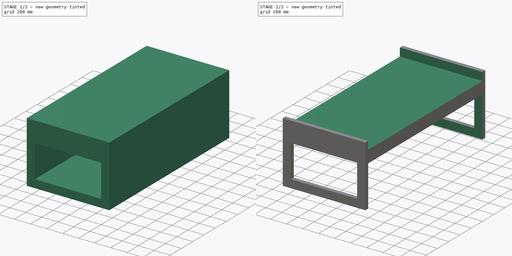
[diagram: build sequence overview — one tinted view per stage of 2, left to right]
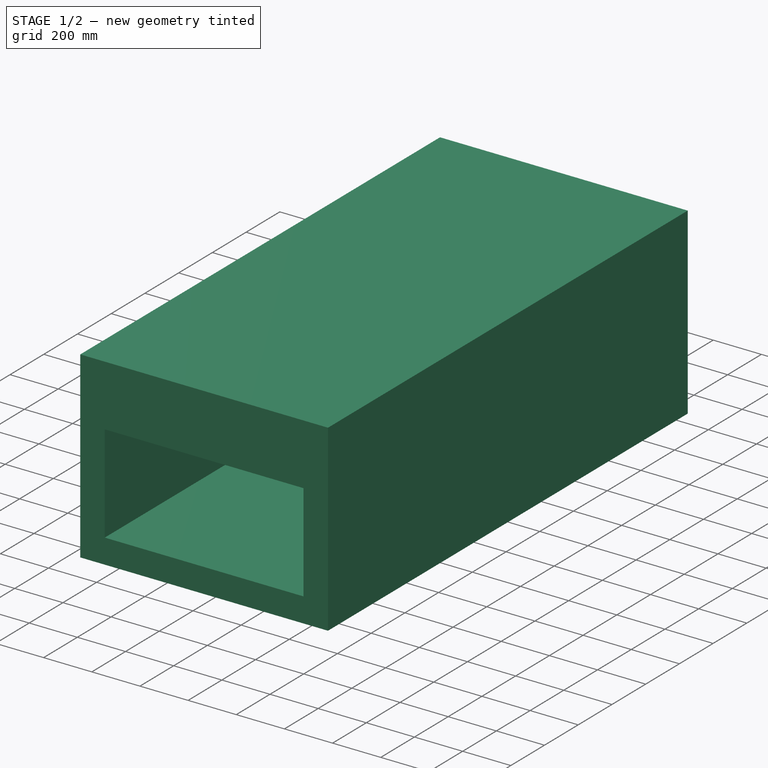
[diagram: stage 1 of 2 — iso view after this stage's code; geometry added in this stage tinted green]
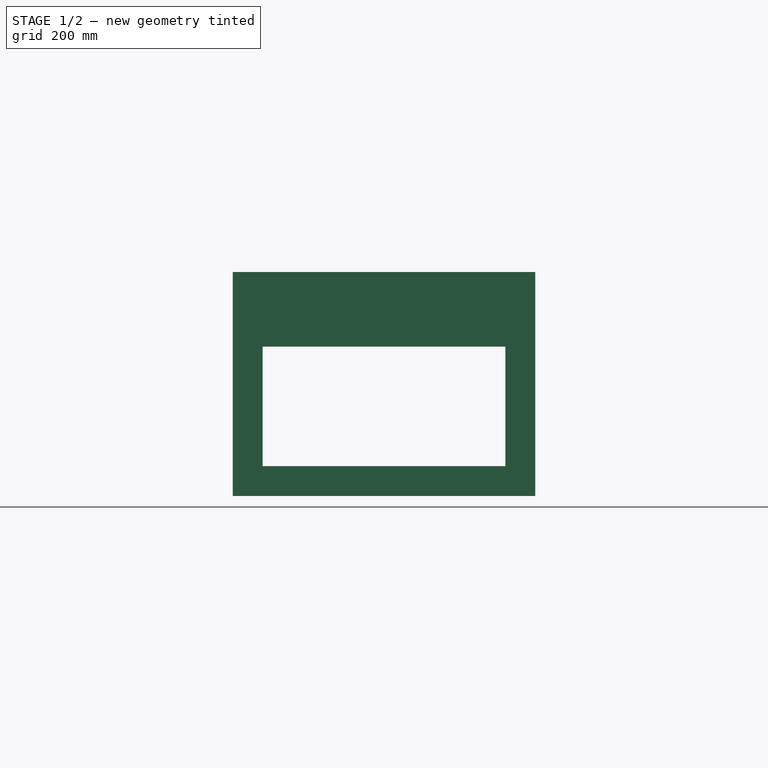
[diagram: stage 1 of 2 — front view after this stage's code; geometry added in this stage tinted green]
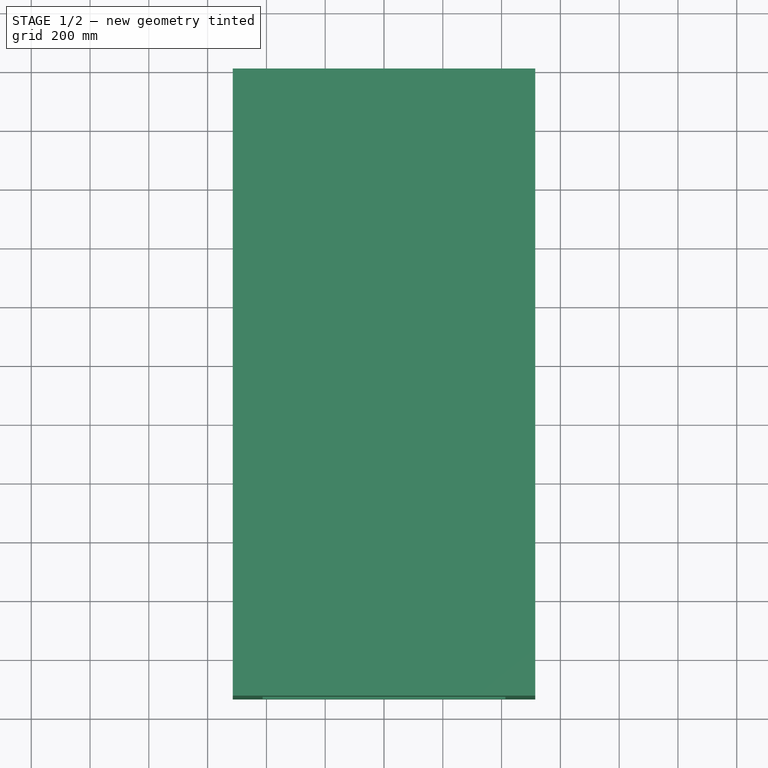
[diagram: stage 1 of 2 — top view after this stage's code; geometry added in this stage tinted green]
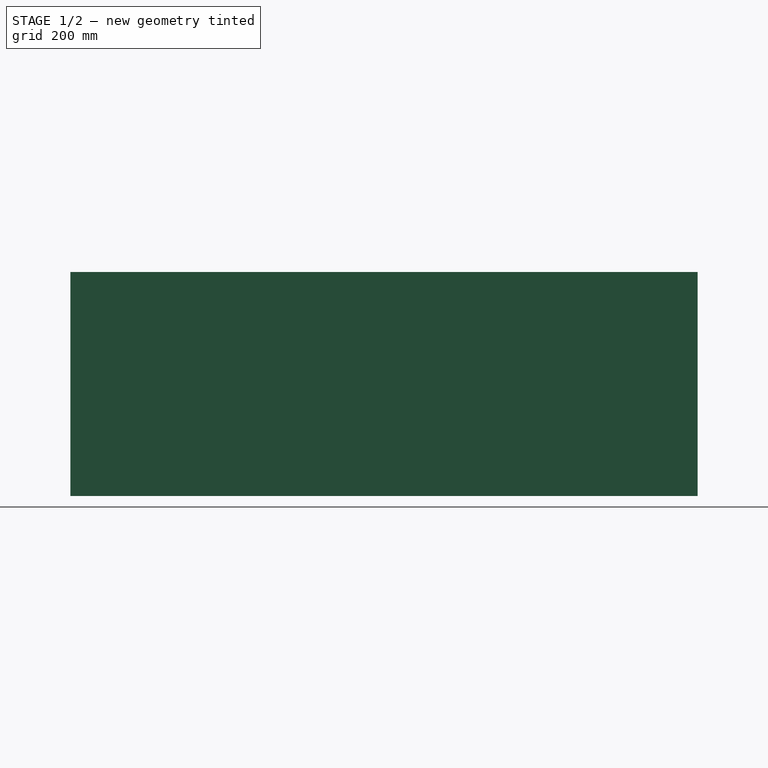
[diagram: stage 1 of 2 — right view after this stage's code; geometry added in this stage tinted green]
FCSTD DOCUMENT  (FreeCAD 0.16R6704 (Git))
Label: bed
License: All rights reserved
LicenseURL: http://en.wikipedia.org/wiki/All_rights_reserved
objects: Sketcher::SketchObject×4, PartDesign::Pocket×3, PartDesign::Pad×1, App::DocumentObjectGroup×1
note: 12 computed .brp shape members not serialized (recipe doc carries the construction recipe); baked Part::Feature solids carry a one-line shape summary decoded from their .brp

FEATURE [Sketcher::SketchObject] Sketch
  Placement = pos=(0,0,0) rot=(-1,0,0;4.71239rad)
  sketch-geometry (4):
    g0: LineSegment StartX=-514.35 StartY=381 StartZ=0 EndX=514.35 EndY=381 EndZ=0
    g1: LineSegment StartX=514.35 StartY=381 StartZ=0 EndX=514.35 EndY=-381 EndZ=0
    g2: LineSegment StartX=514.35 StartY=-381 StartZ=0 EndX=-514.35 EndY=-381 EndZ=0
    g3: LineSegment StartX=-514.35 StartY=-381 StartZ=0 EndX=-514.35 EndY=381 EndZ=0
  constraints (10):
    c: Coincident(g0,g1)
    c: Coincident(g1,g2)
    c: Coincident(g2,g3)
    c: Coincident(g3,g0)
    c: Horizontal(g0)
    c: Horizontal(g2)
    c: Vertical(g1)
    c: Vertical(g3)
    c: DistanceX(g0,g0) = 1028.7
    c: DistanceY(g3,g3) = 762
FEATURE [PartDesign::Pad] Pad
  Length = 2133.6
  Length2 = 100
  Placement = pos=(0,0,0) rot=(-1,0,0;4.71239rad)
  Sketch = -> Sketch
  Type = 0
FEATURE [Sketcher::SketchObject] Sketch001
  ExternalGeometry = -> [Pad]
  Placement = pos=(0,-2133.6,1e-12) rot=(1,0,0;1.5708rad)
  Support = -> Pad [Face6]
  sketch-geometry (4):
    g0: LineSegment StartX=-412.75 StartY=-279.4 StartZ=0 EndX=412.75 EndY=-279.4 EndZ=0
    g1: LineSegment StartX=412.75 StartY=-279.4 StartZ=0 EndX=412.75 EndY=127 EndZ=0
    g2: LineSegment StartX=412.75 StartY=127 StartZ=0 EndX=-412.75 EndY=127 EndZ=0
    g3: LineSegment StartX=-412.75 StartY=127 StartZ=0 EndX=-412.75 EndY=-279.4 EndZ=0
  constraints (12):
    c: Coincident(g0,g1)
    c: Coincident(g1,g2)
    c: Coincident(g2,g3)
    c: Coincident(g3,g0)
    c: Horizontal(g0)
    c: Horizontal(g2)
    c: Vertical(g1)
    c: Vertical(g3)
    c: DistanceY(g-4,g0) = 101.6
    c: DistanceX(g0,g-4) = 101.6
    c: DistanceX(g-5,g0) = 101.6
    c: DistanceY(g2,g-6) = 254
FEATURE [PartDesign::Pocket] Pocket
  Length = 4.99999
  Placement = pos=(0,0,0) rot=(-1,0,0;4.71239rad)
  Sketch = -> Sketch001
  Type = 1
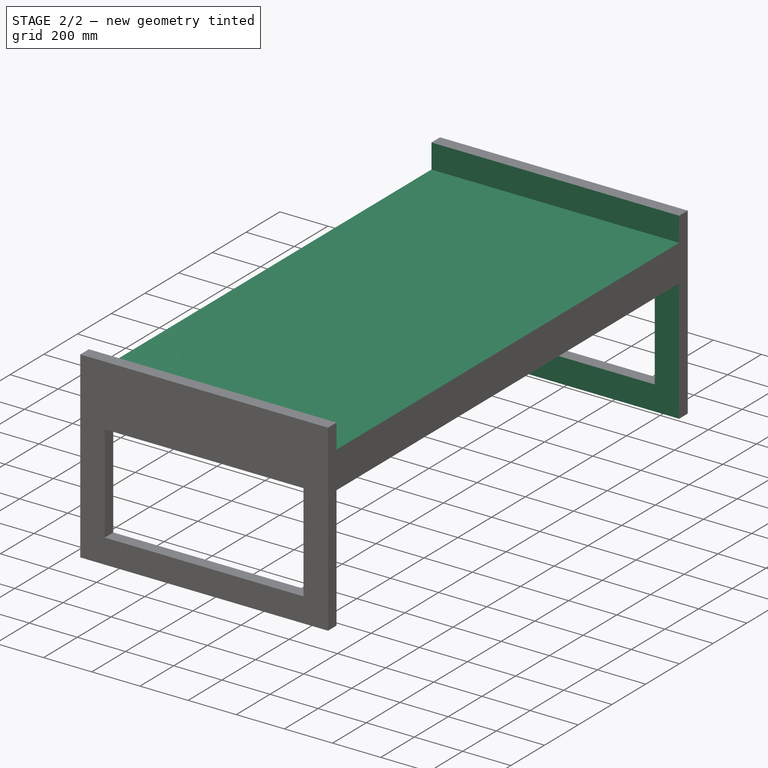
[diagram: stage 2 of 2 — iso view after this stage's code; geometry added in this stage tinted green]
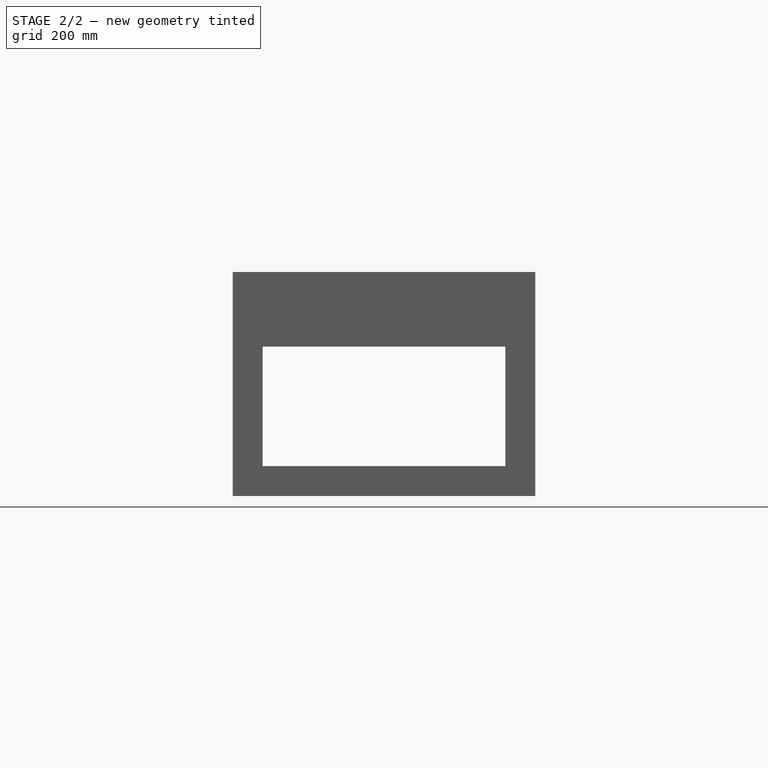
[diagram: stage 2 of 2 — front view after this stage's code; geometry added in this stage tinted green]
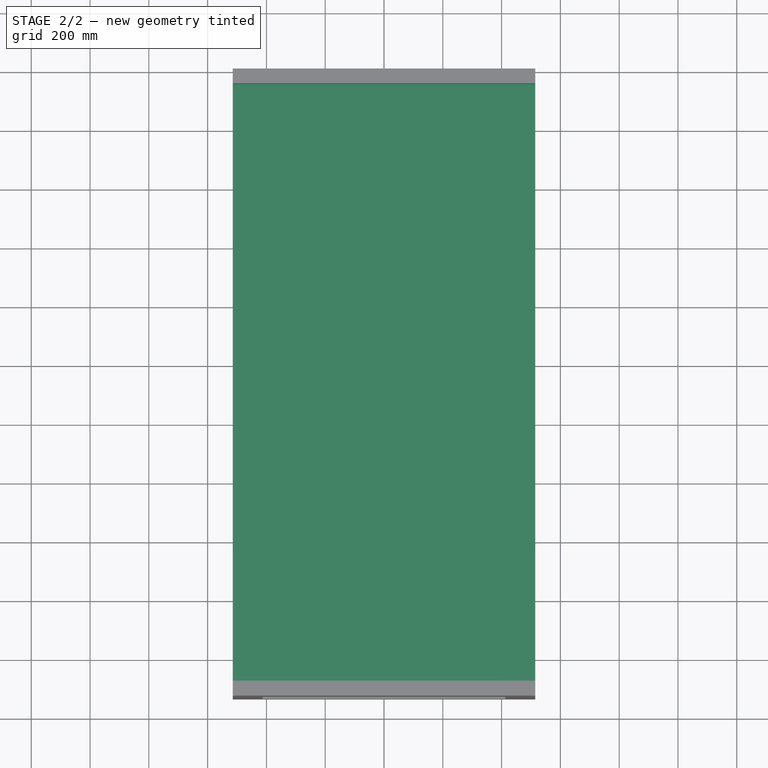
[diagram: stage 2 of 2 — top view after this stage's code; geometry added in this stage tinted green]
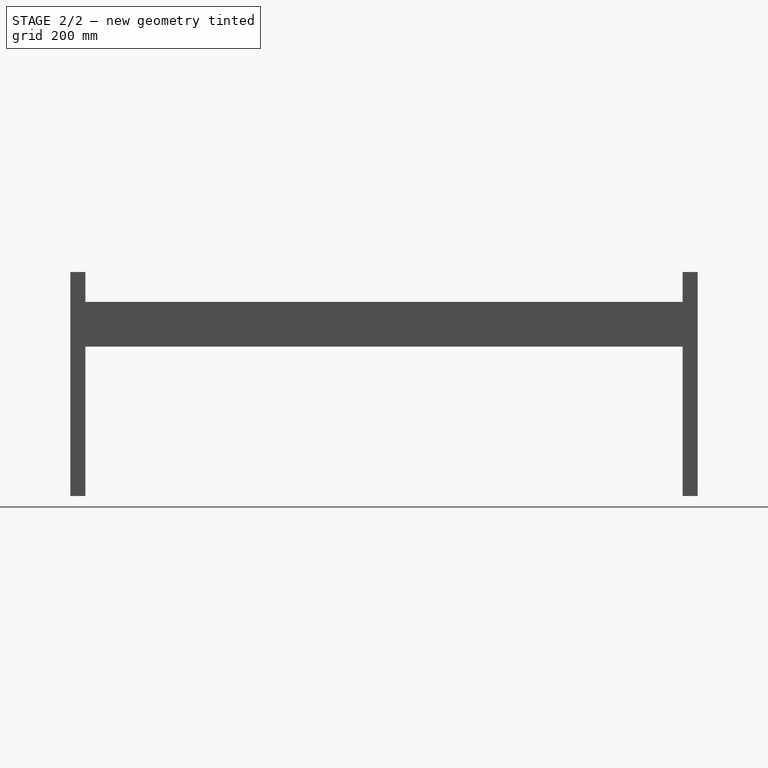
[diagram: stage 2 of 2 — right view after this stage's code; geometry added in this stage tinted green]
FEATURE [Sketcher::SketchObject] Sketch002
  ExternalGeometry = -> [Pocket]
  Placement = pos=(514.35,0,0) rot=(0.707107,0,0.707107;3.14159rad)
  Support = -> Pocket [Face3]
  sketch-geometry (4):
    g0: LineSegment StartX=127 StartY=2082.8 StartZ=0 EndX=-381 EndY=2082.8 EndZ=0
    g1: LineSegment StartX=-381 StartY=2082.8 StartZ=0 EndX=-381 EndY=50.8 EndZ=0
    g2: LineSegment StartX=-381 StartY=50.8 StartZ=0 EndX=127 EndY=50.8 EndZ=0
    g3: LineSegment StartX=127 StartY=50.8 StartZ=0 EndX=127 EndY=2082.8 EndZ=0
  constraints (12):
    c: Coincident(g0,g1)
    c: Coincident(g1,g2)
    c: Coincident(g2,g3)
    c: Coincident(g3,g0)
    c: Horizontal(g0)
    c: Horizontal(g2)
    c: Vertical(g1)
    c: Vertical(g3)
    c: Distance(g0,g-3) = 50.8
    c: PointOnObject(g0,g-4)
    c: DistanceY(g0,g-3) = 50.8
    c: DistanceY(g-1,g2) = 50.8
FEATURE [PartDesign::Pocket] Pocket001
  Length = 4.99999
  Placement = pos=(0,0,0) rot=(-1,0,0;4.71239rad)
  Sketch = -> Sketch002
  Type = 1
FEATURE [Sketcher::SketchObject] Sketch003
  ExternalGeometry = -> [Pocket001]
  Placement = pos=(514.35,0,0) rot=(0.707107,0,0.707107;3.14159rad)
  Support = -> Pocket001 [Face3]
  sketch-geometry (4):
    g0: LineSegment StartX=279.4 StartY=2082.8 StartZ=0 EndX=381 EndY=2082.8 EndZ=0
    g1: LineSegment StartX=381 StartY=2082.8 StartZ=0 EndX=381 EndY=50.8 EndZ=0
    g2: LineSegment StartX=381 StartY=50.8 StartZ=0 EndX=279.4 EndY=50.8 EndZ=0
    g3: LineSegment StartX=279.4 StartY=50.8 StartZ=0 EndX=279.4 EndY=2082.8 EndZ=0
  constraints (12):
    c: Coincident(g0,g1)
    c: Coincident(g1,g2)
    c: Coincident(g2,g3)
    c: Coincident(g3,g0)
    c: Horizontal(g0)
    c: Horizontal(g2)
    c: Vertical(g1)
    c: Vertical(g3)
    c: DistanceX(g-3,g0) = 152.4
    c: DistanceY(g0,g-5) = 50.8
    c: DistanceY(g-5,g2) = 50.8
    c: PointOnObject(g1,g-5)
FEATURE [PartDesign::Pocket] Pocket002
  Length = 4.99999
  Placement = pos=(0,0,0) rot=(-1,0,0;4.71239rad)
  Sketch = -> Sketch003
  Type = 1
FEATURE [App::DocumentObjectGroup] Group
  Group = -> [Pad,Pocket,Pocket001,Pocket002]
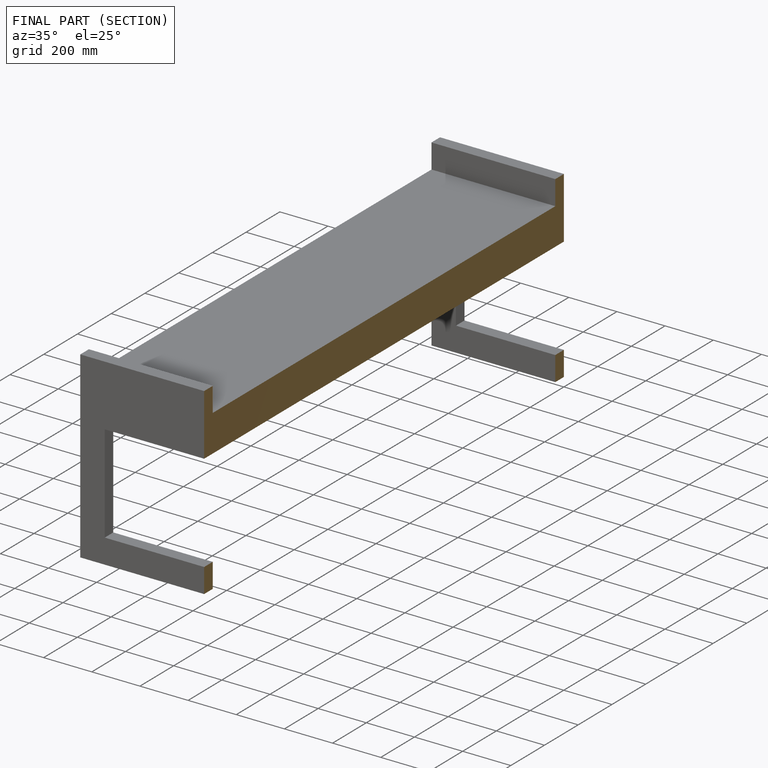
[diagram: finished part — half-section view (interior)]
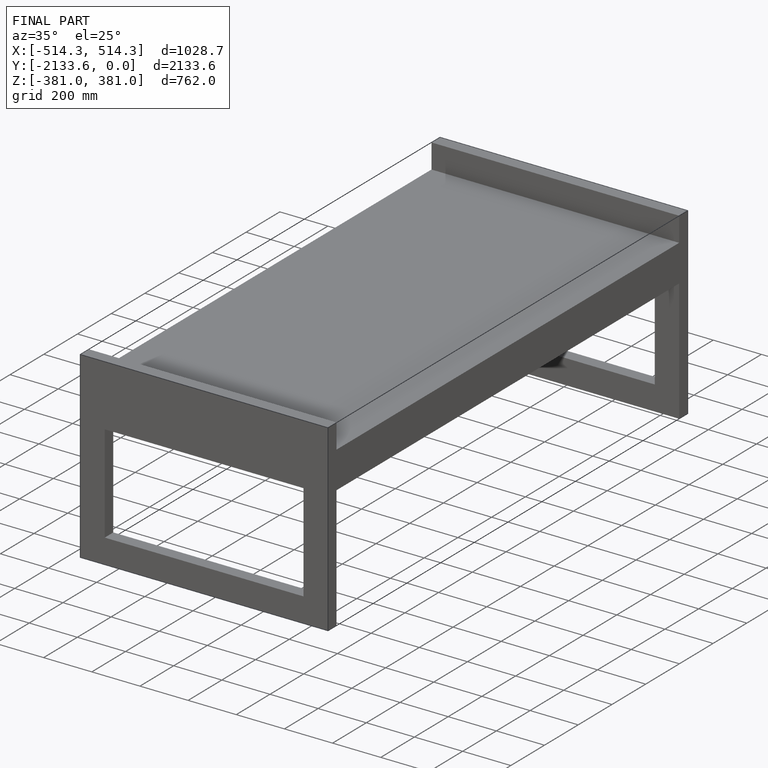
[diagram: finished part — iso view with bounding-box wireframe]
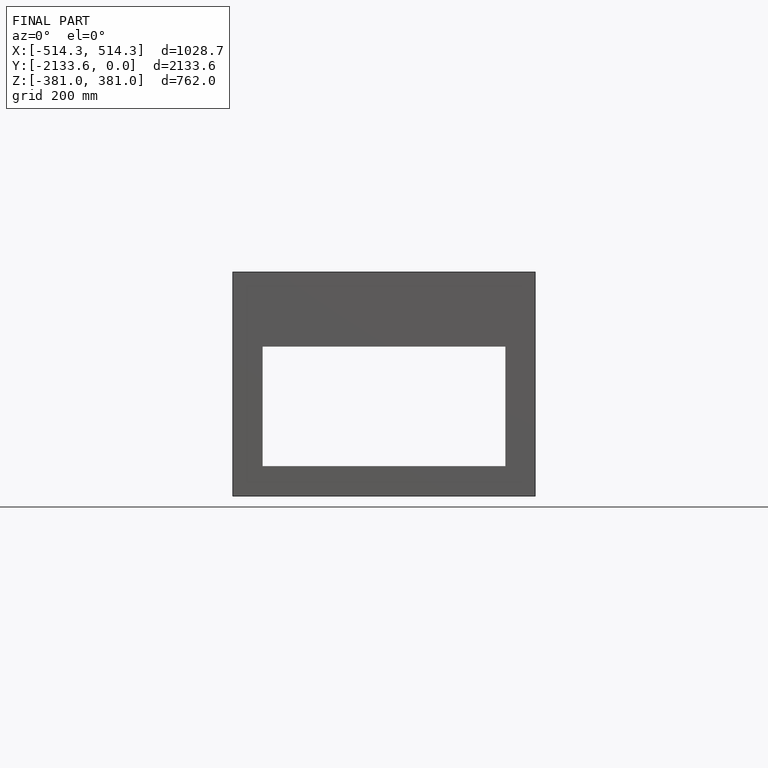
[diagram: finished part — front view with bounding-box wireframe]
